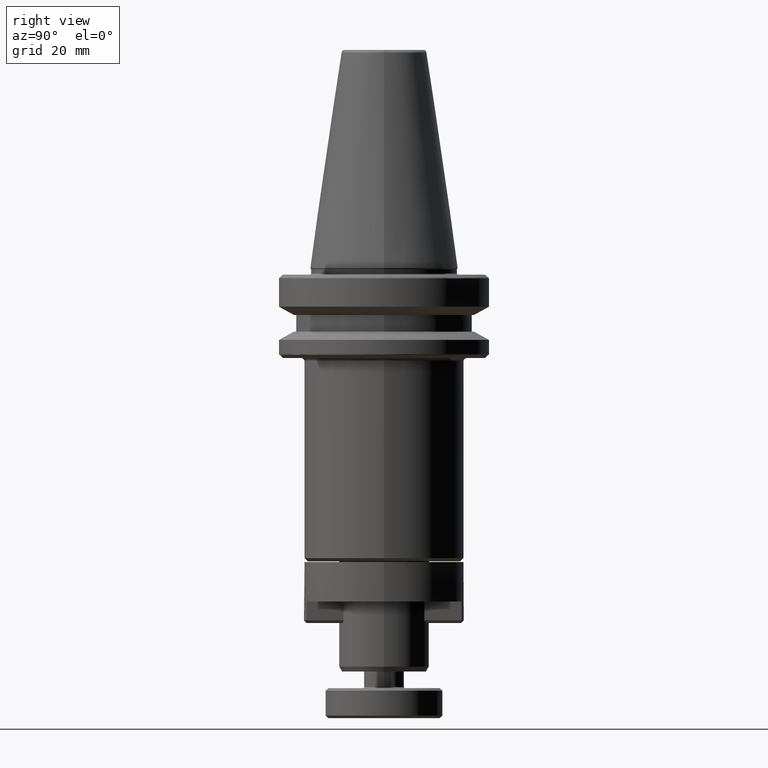
[diagram: clean part render]
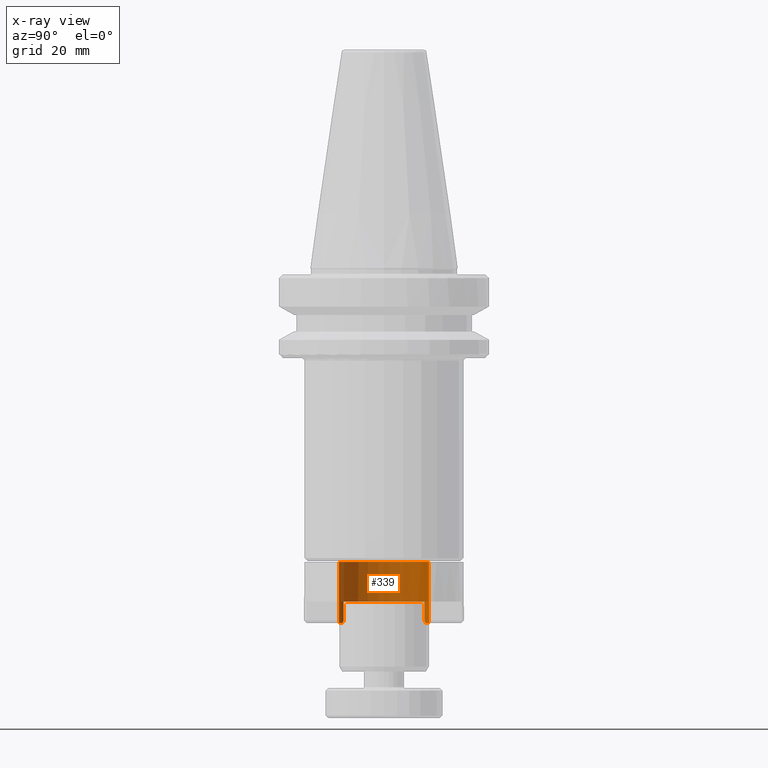
[diagram: x-ray — body ghosted, one internal face saturated and labeled with its STEP entity id]
A machine part, right view, then the same camera in x-ray: the body is ghosted and one INTERNAL B-rep face — a face not visible from any outside direction — is saturated and labeled: STEP entity #339.
In plain terms, the highlighted cylindrical surface (partial cylindrical patch) has radius 13.5 mm, axis along (0, -0, 1).
Its self-contained STEP definition (entity closure, byte-faithful):
#2 = ORIENTED_EDGE ( 'NONE', *, *, #2219, .T. ) ;
#25 = EDGE_CURVE ( 'NONE', #976, #2583, #207, .T. ) ;
#134 = CARTESIAN_POINT ( 'NONE',  ( -5.999999997120449200, 12.09338662387649200, -105.6800000028795700 ) ) ;
#207 = CIRCLE ( 'NONE', #2560, 13.50000000000000000 ) ;
#241 = AXIS2_PLACEMENT_3D ( 'NONE', #666, #2775, #1782 ) ;
#283 = CARTESIAN_POINT ( 'NONE',  ( 1.653273178848926900E-015, 13.50000000000000500, -88.18000000000002100 ) ) ;
#339 = ADVANCED_FACE ( 'NONE', ( #3763 ), #3279, .F. ) ;
#347 = VERTEX_POINT ( 'NONE', #2719 ) ;
#383 = DIRECTION ( 'NONE',  ( 0.0000000000000000000, -6.424901762877064700E-017, 1.000000000000000000 ) ) ;
#449 = CARTESIAN_POINT ( 'NONE',  ( -5.470582608731865200, 12.34539169300691500, -106.2094173912681600 ) ) ;
#467 = LINE ( 'NONE', #3565, #3145 ) ;
#525 = CARTESIAN_POINT ( 'NONE',  ( 0.0000000000000000000, -13.49999999999999300, -106.4800000000000200 ) ) ;
#569 = CARTESIAN_POINT ( 'NONE',  ( -5.999999996412710400, -12.09338662422761200, -97.33000000000001300 ) ) ;
#643 = EDGE_CURVE ( 'NONE', #347, #3101, #1313, .T. ) ;
#666 = CARTESIAN_POINT ( 'NONE',  ( 0.0000000000000000000, 6.712737361853958800E-015, -106.4800000000000200 ) ) ;
#707 = AXIS2_PLACEMENT_3D ( 'NONE', #1477, #3539, #1763 ) ;
#725 = VECTOR ( 'NONE', #383, 1000.000000000000000 ) ;
#769 = DIRECTION ( 'NONE',  ( -0.0000000000000000000, 6.424901762877064700E-017, -1.000000000000000000 ) ) ;
#773 = ORIENTED_EDGE ( 'NONE', *, *, #2435, .T. ) ;
#976 = VERTEX_POINT ( 'NONE', #1890 ) ;
#1107 = CIRCLE ( 'NONE', #3642, 13.50000000000000000 ) ;
#1224 = EDGE_LOOP ( 'NONE', ( #2387, #2857, #2632, #3176, #1676, #773, #1647, #3448, #2, #2604 ) ) ;
#1313 = LINE ( 'NONE', #1651, #2285 ) ;
#1345 = EDGE_CURVE ( 'NONE', #3361, #3460, #3363, .T. ) ;
#1366 = VECTOR ( 'NONE', #2930, 1000.000000000000000 ) ;
#1477 = CARTESIAN_POINT ( 'NONE',  ( 0.0000000000000000000, 6.712737361853958800E-015, -106.4800000000000200 ) ) ;
#1535 =( BOUNDED_CURVE ( )  B_SPLINE_CURVE ( 3, ( #3380, #2171, #1883, #1603 ),
 .UNSPECIFIED., .F., .F. ) 
 B_SPLINE_CURVE_WITH_KNOTS ( ( 4, 4 ),
 ( 5.107797463477940200, 5.172942971917695600 ),
 .UNSPECIFIED. ) 
 CURVE ( )  GEOMETRIC_REPRESENTATION_ITEM ( )  RATIONAL_B_SPLINE_CURVE ( ( 1.000000000000000000, 0.9996463698288412500, 0.9996463698288412500, 1.000000000000000000 ) ) 
 REPRESENTATION_ITEM ( '' )  );
#1572 = CARTESIAN_POINT ( 'NONE',  ( 0.0000000000000000000, -13.49999999999999300, -106.4800000000000200 ) ) ;
#1603 = CARTESIAN_POINT ( 'NONE',  ( -5.999999998206354800, -12.09338662333771800, -105.6800000017936600 ) ) ;
#1647 = ORIENTED_EDGE ( 'NONE', *, *, #2738, .T. ) ;
#1651 = CARTESIAN_POINT ( 'NONE',  ( 1.653273178848926900E-015, 13.50000000000000700, -106.4800000000000200 ) ) ;
#1676 = ORIENTED_EDGE ( 'NONE', *, *, #3795, .T. ) ;
#1722 = VERTEX_POINT ( 'NONE', #1855 ) ;
#1763 = DIRECTION ( 'NONE',  ( 3.552713678800500900E-015, -1.000000000000000000, 0.0000000000000000000 ) ) ;
#1782 = DIRECTION ( 'NONE',  ( 0.0000000000000000000, -1.000000000000000000, 0.0000000000000000000 ) ) ;
#1817 = EDGE_CURVE ( 'NONE', #3101, #3460, #1839, .T. ) ;
#1839 = CIRCLE ( 'NONE', #3128, 13.50000000000000000 ) ;
#1855 = CARTESIAN_POINT ( 'NONE',  ( -5.999999997120449200, 12.09338662387649200, -105.6800000028795700 ) ) ;
#1883 = CARTESIAN_POINT ( 'NONE',  ( -5.737343609912109300, -12.22370068493012100, -105.9426563900879000 ) ) ;
#1889 = CARTESIAN_POINT ( 'NONE',  ( 0.0000000000000000000, -13.49999999999999500, -88.18000000000002100 ) ) ;
#1890 = CARTESIAN_POINT ( 'NONE',  ( -5.999999999103176900, -12.09338662333771500, -99.99999999685000800 ) ) ;
#1904 = CARTESIAN_POINT ( 'NONE',  ( -5.737343609176670100, 12.22370068526562600, -105.9426563908233600 ) ) ;
#2050 = CIRCLE ( 'NONE', #707, 13.50000000000000000 ) ;
#2051 = CARTESIAN_POINT ( 'NONE',  ( 0.0000000000000000000, 6.296403727214755800E-015, -99.99999999370000100 ) ) ;
#2171 = CARTESIAN_POINT ( 'NONE',  ( -5.470582609104949000, -12.34539169285117800, -106.2094173908950600 ) ) ;
#2215 = CARTESIAN_POINT ( 'NONE',  ( 0.0000000000000000000, 5.536980339247456100E-015, -88.18000000000002100 ) ) ;
#2219 = EDGE_CURVE ( 'NONE', #2583, #1722, #467, .T. ) ;
#2222 = DIRECTION ( 'NONE',  ( 0.0000000000000000000, -6.424901762877064700E-017, 1.000000000000000000 ) ) ;
#2226 = DIRECTION ( 'NONE',  ( 0.0000000000000000000, -1.000000000000000000, 0.0000000000000000000 ) ) ;
#2285 = VECTOR ( 'NONE', #2998, 1000.000000000000000 ) ;
#2358 = DIRECTION ( 'NONE',  ( -0.0000000000000000000, -0.0000000000000000000, -1.000000000000000000 ) ) ;
#2387 = ORIENTED_EDGE ( 'NONE', *, *, #2844, .T. ) ;
#2435 = EDGE_CURVE ( 'NONE', #3287, #3586, #1535, .T. ) ;
#2504 = CARTESIAN_POINT ( 'NONE',  ( -5.200000000000000200, 12.45833054626502400, -106.4800000000000200 ) ) ;
#2510 = EDGE_CURVE ( 'NONE', #1722, #3538, #2549, .T. ) ;
#2533 = CARTESIAN_POINT ( 'NONE',  ( 0.0000000000000000000, 6.712737361853958800E-015, -106.4800000000000200 ) ) ;
#2549 =( BOUNDED_CURVE ( )  B_SPLINE_CURVE ( 3, ( #134, #1904, #449, #2504 ),
 .UNSPECIFIED., .F., .F. ) 
 B_SPLINE_CURVE_WITH_KNOTS ( ( 4, 4 ),
 ( 1.110242335351683900, 1.175387843701646100 ),
 .UNSPECIFIED. ) 
 CURVE ( )  GEOMETRIC_REPRESENTATION_ITEM ( )  RATIONAL_B_SPLINE_CURVE ( ( 1.000000000000000000, 0.9996463698298161400, 0.9996463698298161400, 1.000000000000000000 ) ) 
 REPRESENTATION_ITEM ( '' )  );
#2552 = DIRECTION ( 'NONE',  ( 0.0000000000000000000, -1.000000000000000000, 0.0000000000000000000 ) ) ;
#2560 = AXIS2_PLACEMENT_3D ( 'NONE', #2051, #3517, #2552 ) ;
#2583 = VERTEX_POINT ( 'NONE', #3420 ) ;
#2604 = ORIENTED_EDGE ( 'NONE', *, *, #2510, .T. ) ;
#2632 = ORIENTED_EDGE ( 'NONE', *, *, #1817, .T. ) ;
#2719 = CARTESIAN_POINT ( 'NONE',  ( 1.653273178848927300E-015, 13.50000000000000900, -106.4800000000000200 ) ) ;
#2738 = EDGE_CURVE ( 'NONE', #3586, #976, #3108, .T. ) ;
#2775 = DIRECTION ( 'NONE',  ( 0.0000000000000000000, -6.424901762877064700E-017, 1.000000000000000000 ) ) ;
#2839 = DIRECTION ( 'NONE',  ( 0.0000000000000000000, -1.000000000000000000, 0.0000000000000000000 ) ) ;
#2844 = EDGE_CURVE ( 'NONE', #3538, #347, #2050, .T. ) ;
#2857 = ORIENTED_EDGE ( 'NONE', *, *, #643, .T. ) ;
#2930 = DIRECTION ( 'NONE',  ( 0.0000000000000000000, 0.0000000000000000000, 1.000000000000000000 ) ) ;
#2998 = DIRECTION ( 'NONE',  ( 0.0000000000000000000, -6.424901762877064700E-017, 1.000000000000000000 ) ) ;
#3101 = VERTEX_POINT ( 'NONE', #283 ) ;
#3108 = LINE ( 'NONE', #569, #1366 ) ;
#3128 = AXIS2_PLACEMENT_3D ( 'NONE', #2215, #2222, #2226 ) ;
#3145 = VECTOR ( 'NONE', #2358, 1000.000000000000000 ) ;
#3176 = ORIENTED_EDGE ( 'NONE', *, *, #1345, .F. ) ;
#3279 = CYLINDRICAL_SURFACE ( 'NONE', #241, 13.50000000000000000 ) ;
#3280 = CARTESIAN_POINT ( 'NONE',  ( -5.200000000000000200, 12.45833054626502400, -106.4800000000000200 ) ) ;
#3287 = VERTEX_POINT ( 'NONE', #3337 ) ;
#3337 = CARTESIAN_POINT ( 'NONE',  ( -5.200000000000000200, -12.45833054626501000, -106.4800000000000200 ) ) ;
#3361 = VERTEX_POINT ( 'NONE', #1572 ) ;
#3363 = LINE ( 'NONE', #525, #725 ) ;
#3380 = CARTESIAN_POINT ( 'NONE',  ( -5.200000000000000200, -12.45833054626501000, -106.4800000000000200 ) ) ;
#3420 = CARTESIAN_POINT ( 'NONE',  ( -5.999999998560224600, 12.09338662387649100, -99.99999999685000800 ) ) ;
#3448 = ORIENTED_EDGE ( 'NONE', *, *, #25, .T. ) ;
#3460 = VERTEX_POINT ( 'NONE', #1889 ) ;
#3517 = DIRECTION ( 'NONE',  ( -0.0000000000000000000, 6.424901762877064700E-017, -1.000000000000000000 ) ) ;
#3538 = VERTEX_POINT ( 'NONE', #3280 ) ;
#3539 = DIRECTION ( 'NONE',  ( -0.0000000000000000000, 6.424901762877064700E-017, -1.000000000000000000 ) ) ;
#3565 = CARTESIAN_POINT ( 'NONE',  ( -5.999999994240897500, 12.09338662530514700, -97.33000000000001300 ) ) ;
#3586 = VERTEX_POINT ( 'NONE', #3597 ) ;
#3597 = CARTESIAN_POINT ( 'NONE',  ( -5.999999998206354800, -12.09338662333771800, -105.6800000017936600 ) ) ;
#3642 = AXIS2_PLACEMENT_3D ( 'NONE', #2533, #769, #2839 ) ;
#3763 = FACE_OUTER_BOUND ( 'NONE', #1224, .T. ) ;
#3795 = EDGE_CURVE ( 'NONE', #3361, #3287, #1107, .T. ) ;